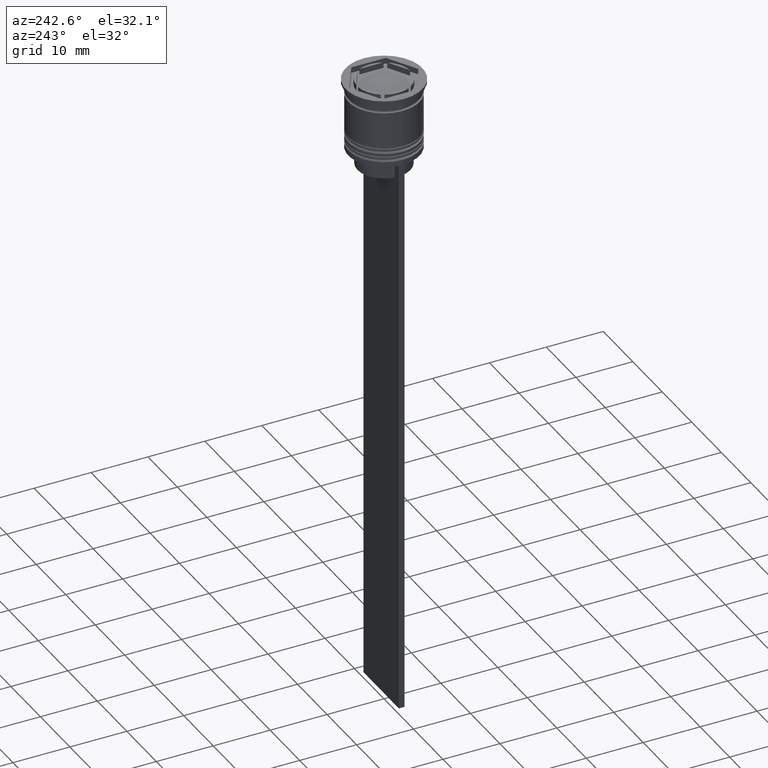
[diagram: clean part render]
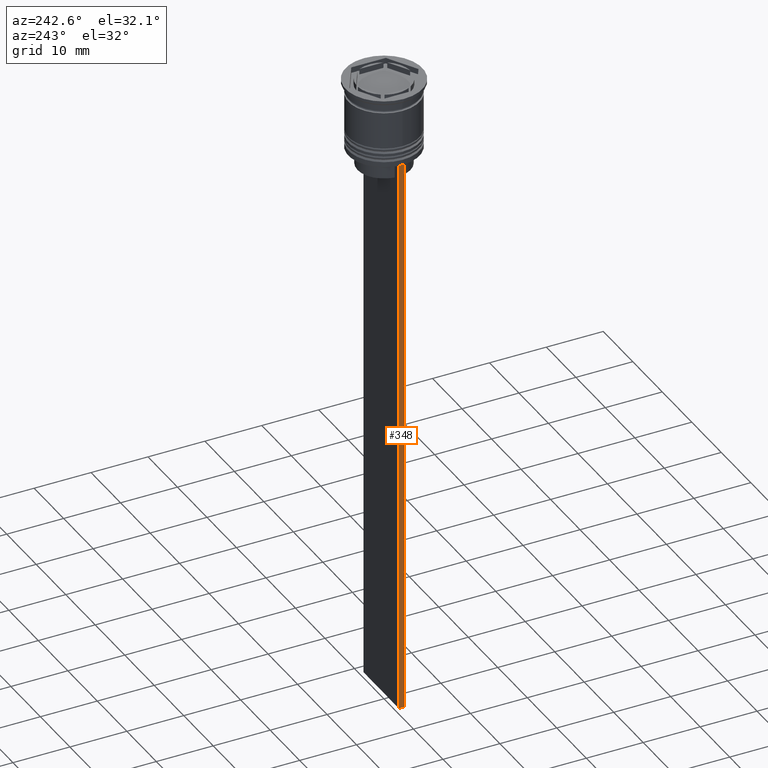
[diagram: same view with one face highlighted and labeled with its STEP entity id]
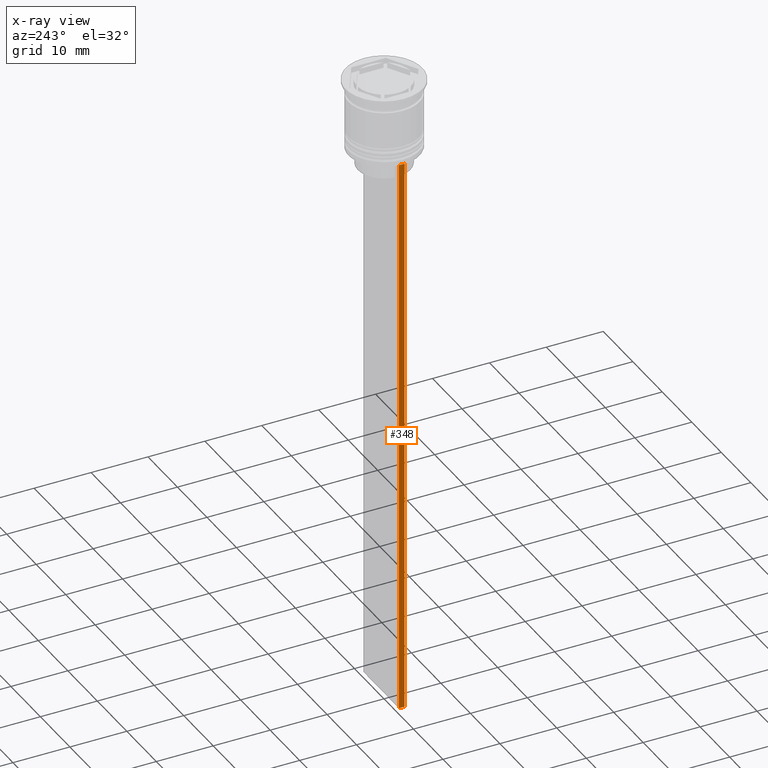
[diagram: x-ray of the same camera — body ghosted, the highlighted face saturated]
A machine part, auxiliary view. The second image highlights one B-rep face of the part: STEP entity #348.
The next image is the same camera in x-ray: the body ghosted, the highlighted face saturated — about 0% of this face is hidden behind the body in this view.
In plain terms, the highlighted planar face has unit normal (-1, 0, 0).
Its self-contained STEP definition (entity closure, byte-faithful):
#7 = EDGE_CURVE ( 'NONE', #673, #689, #422, .T. ) ;
#84 = CARTESIAN_POINT ( 'NONE',  ( -5.999999999999983125, 0.4999999999999982792, -0.4584054212077061097 ) ) ;
#126 = DIRECTION ( 'NONE',  ( 0.000000000000000000, 0.000000000000000000, -1.000000000000000000 ) ) ;
#155 = VECTOR ( 'NONE', #801, 1000.000000000000000 ) ;
#168 = EDGE_CURVE ( 'NONE', #673, #2134, #2079, .T. ) ;
#252 = LINE ( 'NONE', #1893, #1749 ) ;
#342 = LINE ( 'NONE', #856, #1348 ) ;
#348 = ADVANCED_FACE ( 'NONE', ( #488 ), #701, .T. ) ;
#365 = DIRECTION ( 'NONE',  ( -1.000000000000000000, 0.000000000000000000, 0.000000000000000000 ) ) ;
#421 = ORIENTED_EDGE ( 'NONE', *, *, #7, .F. ) ;
#422 = LINE ( 'NONE', #1151, #1027 ) ;
#487 = EDGE_CURVE ( 'NONE', #689, #2078, #342, .T. ) ;
#488 = FACE_OUTER_BOUND ( 'NONE', #1056, .T. ) ;
#627 = DIRECTION ( 'NONE',  ( 0.000000000000000000, 1.000000000000000000, 0.000000000000000000 ) ) ;
#673 = VERTEX_POINT ( 'NONE', #907 ) ;
#689 = VERTEX_POINT ( 'NONE', #2162 ) ;
#701 = PLANE ( 'NONE',  #1112 ) ;
#801 = DIRECTION ( 'NONE',  ( 0.000000000000000000, 0.000000000000000000, -1.000000000000000000 ) ) ;
#805 = CARTESIAN_POINT ( 'NONE',  ( -5.999999999999983125, 0.4999999999999982792, -112.5000000000000000 ) ) ;
#826 = EDGE_CURVE ( 'NONE', #2078, #2134, #252, .T. ) ;
#856 = CARTESIAN_POINT ( 'NONE',  ( -5.999999999999983125, -0.5000000000000017764, -0.4584054212077061097 ) ) ;
#890 = CARTESIAN_POINT ( 'NONE',  ( -5.999999999999983125, -0.5000000000000017764, -0.4584054212077061097 ) ) ;
#907 = CARTESIAN_POINT ( 'NONE',  ( -5.999999999999983125, 0.4999999999999985012, -12.50000000000000000 ) ) ;
#1027 = VECTOR ( 'NONE', #1469, 1000.000000000000000 ) ;
#1056 = EDGE_LOOP ( 'NONE', ( #421, #2000, #1839, #1520 ) ) ;
#1112 = AXIS2_PLACEMENT_3D ( 'NONE', #890, #365, #1615 ) ;
#1141 = CARTESIAN_POINT ( 'NONE',  ( -5.999999999999983125, -0.5000000000000017764, -112.5000000000000000 ) ) ;
#1151 = CARTESIAN_POINT ( 'NONE',  ( -5.999999999999983125, -0.5000000000000017764, -12.50000000000000000 ) ) ;
#1348 = VECTOR ( 'NONE', #126, 1000.000000000000000 ) ;
#1469 = DIRECTION ( 'NONE',  ( 0.000000000000000000, -1.000000000000000000, 0.000000000000000000 ) ) ;
#1520 = ORIENTED_EDGE ( 'NONE', *, *, #487, .F. ) ;
#1615 = DIRECTION ( 'NONE',  ( 0.000000000000000000, 0.000000000000000000, 1.000000000000000000 ) ) ;
#1749 = VECTOR ( 'NONE', #627, 1000.000000000000000 ) ;
#1839 = ORIENTED_EDGE ( 'NONE', *, *, #826, .F. ) ;
#1893 = CARTESIAN_POINT ( 'NONE',  ( -5.999999999999983125, -0.5000000000000017764, -112.5000000000000000 ) ) ;
#2000 = ORIENTED_EDGE ( 'NONE', *, *, #168, .T. ) ;
#2078 = VERTEX_POINT ( 'NONE', #1141 ) ;
#2079 = LINE ( 'NONE', #84, #155 ) ;
#2134 = VERTEX_POINT ( 'NONE', #805 ) ;
#2162 = CARTESIAN_POINT ( 'NONE',  ( -5.999999999999983125, -0.5000000000000017764, -12.50000000000000000 ) ) ;